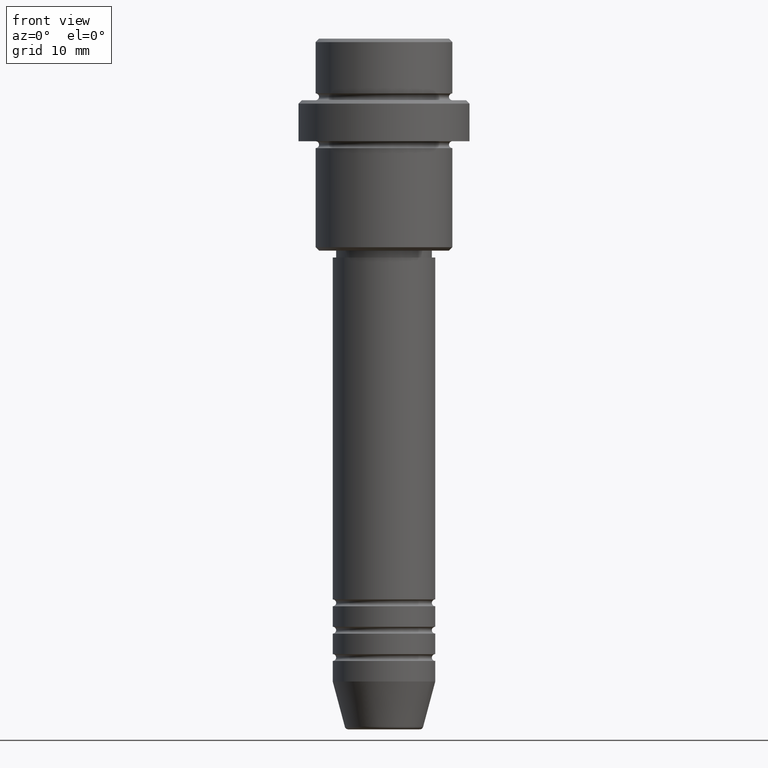
[diagram: clean part render]
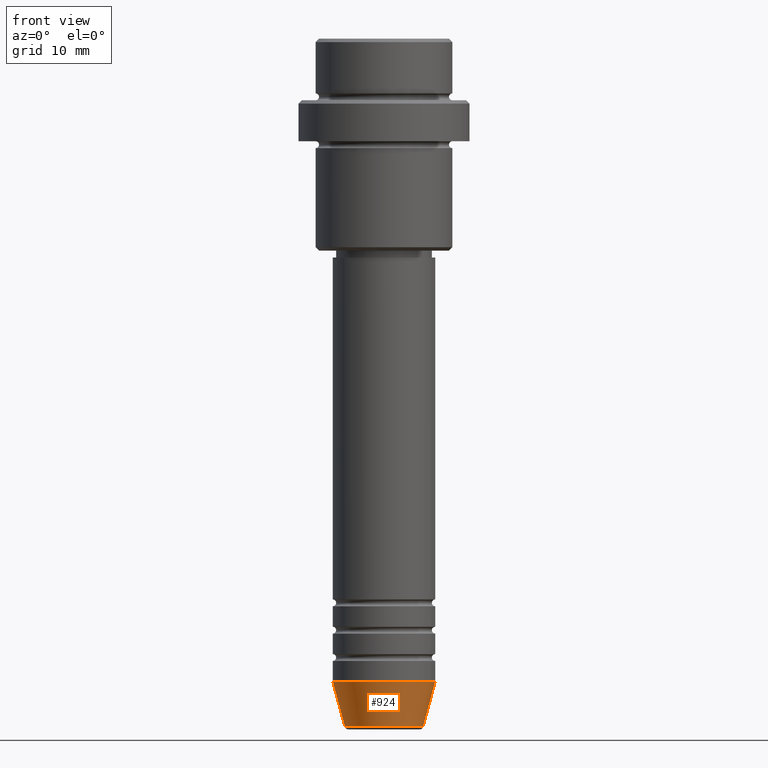
[diagram: same view with one face highlighted and labeled with its STEP entity id]
A machine part, front view. The second image highlights one B-rep face of the part: STEP entity #924.
In plain terms, the highlighted conical surface has half-angle 15 deg.
Its self-contained STEP definition (entity closure, byte-faithful):
#58 = VECTOR ( 'NONE', #407, 1000.000000000000000 ) ;
#111 = CARTESIAN_POINT ( 'NONE',  ( 7.500000000000000000, 0.000000000000000000, -94.00000000000000000 ) ) ;
#113 = EDGE_CURVE ( 'NONE', #524, #1281, #1225, .T. ) ;
#201 = DIRECTION ( 'NONE',  ( 1.000000000000000000, 0.000000000000000000, 0.000000000000000000 ) ) ;
#295 = DIRECTION ( 'NONE',  ( -0.000000000000000000, -0.000000000000000000, 1.000000000000000000 ) ) ;
#357 = CARTESIAN_POINT ( 'NONE',  ( 0.000000000000000000, 0.000000000000000000, -100.6294095225512706 ) ) ;
#390 = LINE ( 'NONE', #830, #58 ) ;
#394 = VECTOR ( 'NONE', #1113, 1000.000000000000000 ) ;
#407 = DIRECTION ( 'NONE',  ( -0.2588190451025213501, 3.169619151431772337E-17, 0.9659258262890680902 ) ) ;
#419 = EDGE_LOOP ( 'NONE', ( #986, #1305, #1036, #1262 ) ) ;
#435 = CARTESIAN_POINT ( 'NONE',  ( 0.000000000000000000, 0.000000000000000000, -94.00000000000000000 ) ) ;
#524 = VERTEX_POINT ( 'NONE', #980 ) ;
#572 = DIRECTION ( 'NONE',  ( 1.000000000000000000, 0.000000000000000000, 0.000000000000000000 ) ) ;
#678 = LINE ( 'NONE', #111, #394 ) ;
#733 = DIRECTION ( 'NONE',  ( 1.000000000000000000, 0.000000000000000000, 0.000000000000000000 ) ) ;
#797 = EDGE_CURVE ( 'NONE', #1026, #1215, #902, .T. ) ;
#806 = CONICAL_SURFACE ( 'NONE', #1389, 7.500000000000000000, 0.2617993877991500740 ) ;
#819 = CARTESIAN_POINT ( 'NONE',  ( 7.500000000000000000, 0.000000000000000000, -94.00000000000000000 ) ) ;
#830 = CARTESIAN_POINT ( 'NONE',  ( -7.500000000000000000, 9.184850993605147944E-16, -94.00000000000000000 ) ) ;
#859 = AXIS2_PLACEMENT_3D ( 'NONE', #435, #1336, #572 ) ;
#898 = EDGE_CURVE ( 'NONE', #1026, #524, #390, .T. ) ;
#902 = CIRCLE ( 'NONE', #1065, 5.723655072137191269 ) ;
#905 = CARTESIAN_POINT ( 'NONE',  ( 5.723655072137191269, 0.000000000000000000, -100.6294095225512706 ) ) ;
#924 = ADVANCED_FACE ( 'NONE', ( #1394 ), #806, .T. ) ;
#980 = CARTESIAN_POINT ( 'NONE',  ( -7.500000000000000000, 9.184850993605147944E-16, -94.00000000000000000 ) ) ;
#981 = EDGE_CURVE ( 'NONE', #1215, #1281, #678, .T. ) ;
#986 = ORIENTED_EDGE ( 'NONE', *, *, #898, .F. ) ;
#1026 = VERTEX_POINT ( 'NONE', #1087 ) ;
#1036 = ORIENTED_EDGE ( 'NONE', *, *, #981, .T. ) ;
#1065 = AXIS2_PLACEMENT_3D ( 'NONE', #357, #1081, #201 ) ;
#1081 = DIRECTION ( 'NONE',  ( -0.000000000000000000, -0.000000000000000000, 1.000000000000000000 ) ) ;
#1087 = CARTESIAN_POINT ( 'NONE',  ( -5.723655072137190380, 8.097153428560735915E-16, -100.6294095225512706 ) ) ;
#1113 = DIRECTION ( 'NONE',  ( 0.2588190451025213501, 0.000000000000000000, 0.9659258262890680902 ) ) ;
#1215 = VERTEX_POINT ( 'NONE', #905 ) ;
#1225 = CIRCLE ( 'NONE', #859, 7.500000000000000000 ) ;
#1262 = ORIENTED_EDGE ( 'NONE', *, *, #113, .F. ) ;
#1281 = VERTEX_POINT ( 'NONE', #819 ) ;
#1283 = CARTESIAN_POINT ( 'NONE',  ( 0.000000000000000000, 0.000000000000000000, -94.00000000000000000 ) ) ;
#1305 = ORIENTED_EDGE ( 'NONE', *, *, #797, .T. ) ;
#1336 = DIRECTION ( 'NONE',  ( -0.000000000000000000, -0.000000000000000000, 1.000000000000000000 ) ) ;
#1389 = AXIS2_PLACEMENT_3D ( 'NONE', #1283, #295, #733 ) ;
#1394 = FACE_OUTER_BOUND ( 'NONE', #419, .T. ) ;